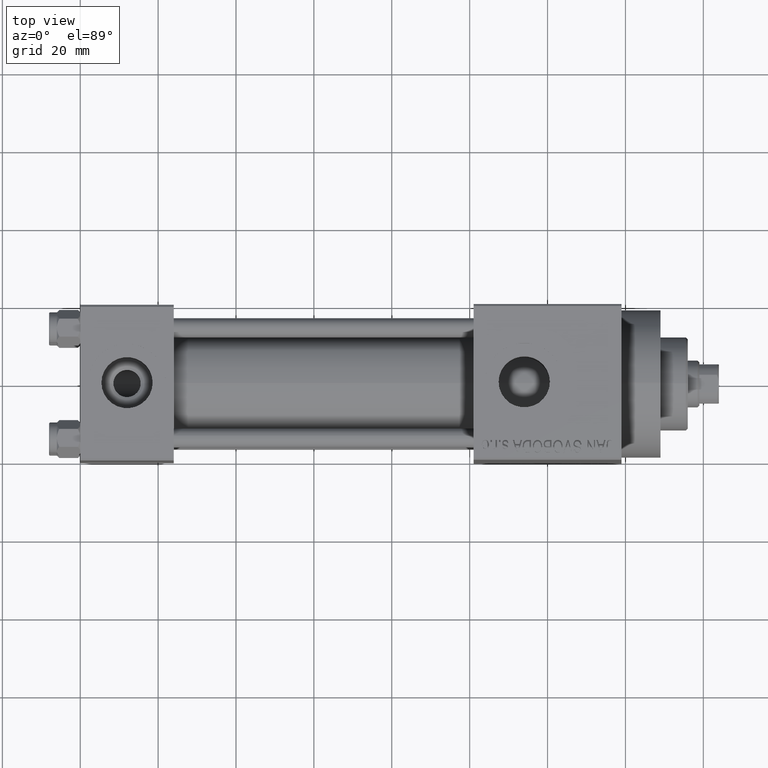
[diagram: clean part render]
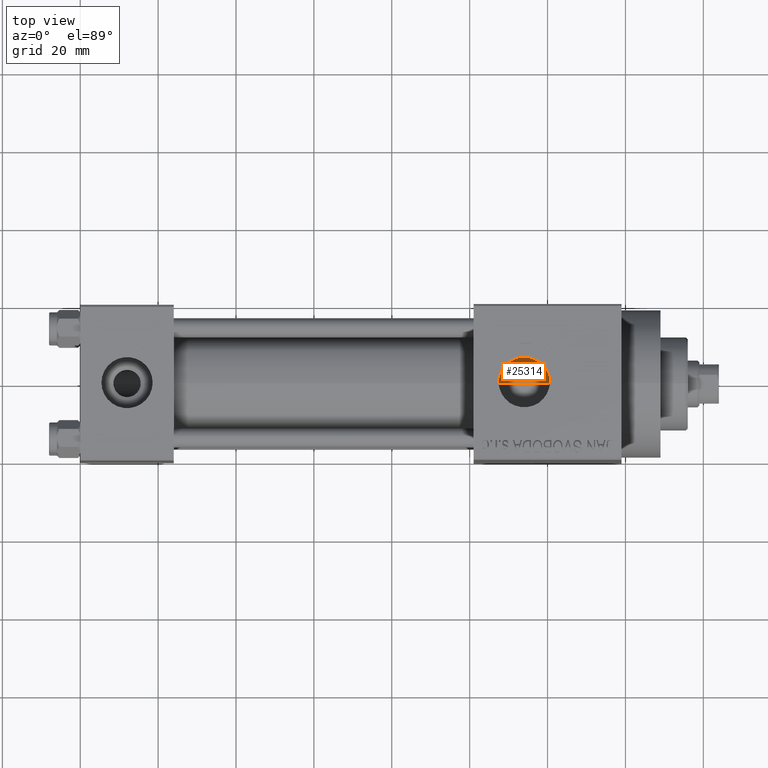
[diagram: same view with one face highlighted and labeled with its STEP entity id]
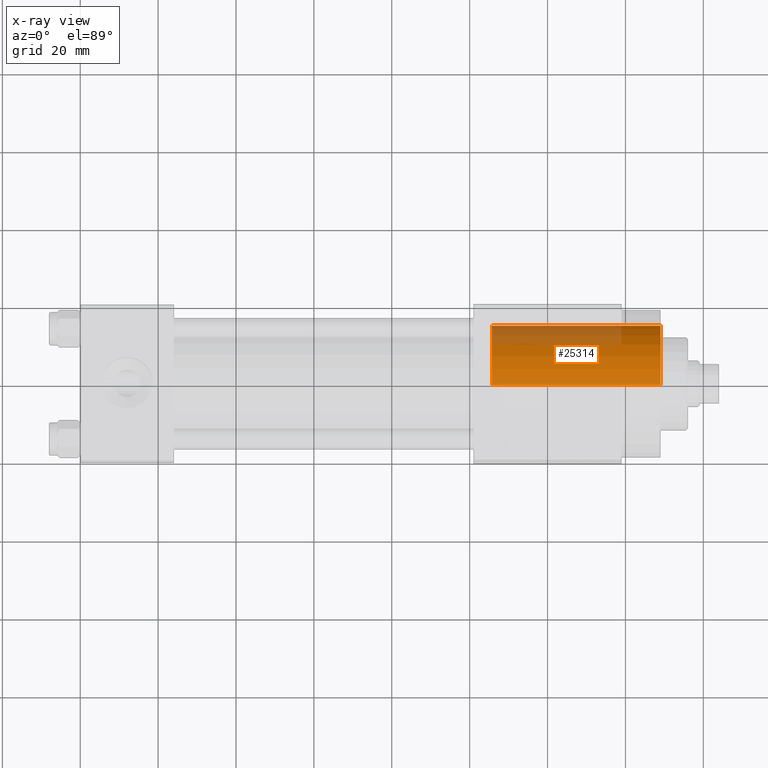
[diagram: x-ray of the same camera — body ghosted, the highlighted face saturated]
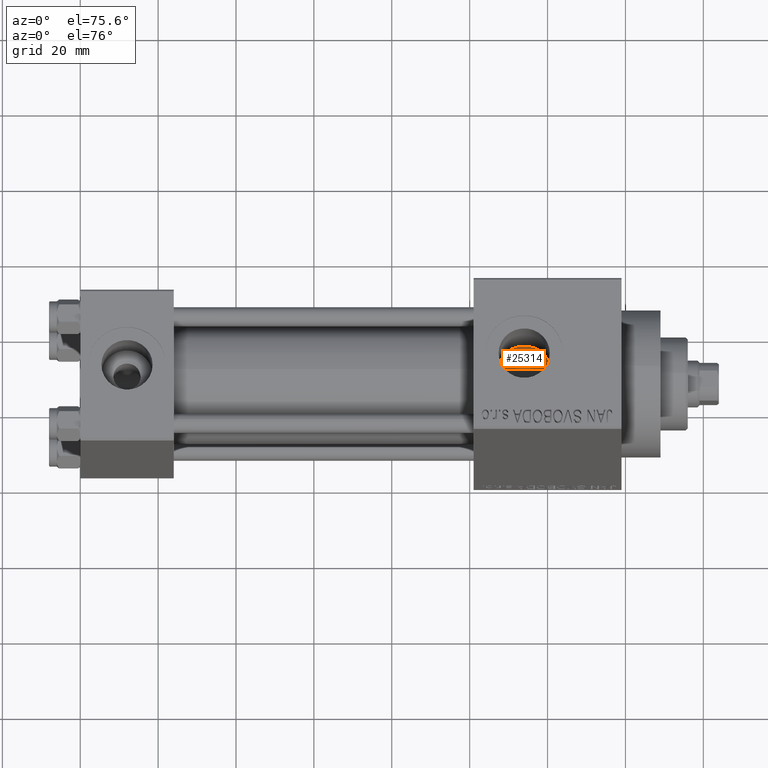
[diagram: same view with one face highlighted and labeled with its STEP entity id]
A machine part, top view. The second image highlights one B-rep face of the part: STEP entity #25314.
The next image is the same camera in x-ray: the body ghosted, the highlighted face saturated — about 28% of this face is hidden behind the body in this view.
A second angle (auxiliary view) of the same face is appended — the face is thin or edge-on in the first view.
In plain terms, the highlighted cylindrical surface (partial cylindrical patch) has radius 15 mm, axis along (-1, 0, 0).
Its self-contained STEP definition (entity closure, byte-faithful):
#131 = DIRECTION ( 'NONE',  ( 0.000000000000000000, 0.000000000000000000, 1.000000000000000000 ) ) ;
#655 = CARTESIAN_POINT ( 'NONE',  ( 15.00000000000000000, 1.836970198721029589E-15, 43.25999999999999801 ) ) ;
#1717 = CIRCLE ( 'NONE', #17650, 15.00000000000000000 ) ;
#3476 = DIRECTION ( 'NONE',  ( 1.000000000000000000, 0.000000000000000000, 0.000000000000000000 ) ) ;
#3797 = CYLINDRICAL_SURFACE ( 'NONE', #41050, 15.00000000000000000 ) ;
#4247 = LINE ( 'NONE', #655, #17190 ) ;
#7319 = CARTESIAN_POINT ( 'NONE',  ( -15.00000000000000000, 0.000000000000000000, 43.25999999999999801 ) ) ;
#10095 = VECTOR ( 'NONE', #29927, 1000.000000000000000 ) ;
#11177 = DIRECTION ( 'NONE',  ( -1.000000000000000000, 0.000000000000000000, 0.000000000000000000 ) ) ;
#11834 = CARTESIAN_POINT ( 'NONE',  ( 15.00000000000000000, 1.836970198721029589E-15, 43.25999999999999801 ) ) ;
#11972 = EDGE_CURVE ( 'NONE', #30467, #35916, #4247, .T. ) ;
#12588 = DIRECTION ( 'NONE',  ( 0.000000000000000000, 0.000000000000000000, 1.000000000000000000 ) ) ;
#14754 = DIRECTION ( 'NONE',  ( -0.000000000000000000, -0.000000000000000000, -1.000000000000000000 ) ) ;
#17190 = VECTOR ( 'NONE', #29956, 1000.000000000000000 ) ;
#17650 = AXIS2_PLACEMENT_3D ( 'NONE', #21579, #131, #3476 ) ;
#19030 = DIRECTION ( 'NONE',  ( 1.000000000000000000, 0.000000000000000000, 0.000000000000000000 ) ) ;
#19508 = VERTEX_POINT ( 'NONE', #35267 ) ;
#20219 = ORIENTED_EDGE ( 'NONE', *, *, #30753, .F. ) ;
#21579 = CARTESIAN_POINT ( 'NONE',  ( 0.000000000000000000, 0.000000000000000000, 43.25999999999999801 ) ) ;
#22786 = LINE ( 'NONE', #7319, #10095 ) ;
#23354 = ORIENTED_EDGE ( 'NONE', *, *, #42257, .T. ) ;
#25314 = ADVANCED_FACE ( 'NONE', ( #36422 ), #3797, .T. ) ;
#29769 = EDGE_LOOP ( 'NONE', ( #40999, #20219, #45941, #23354 ) ) ;
#29927 = DIRECTION ( 'NONE',  ( -0.000000000000000000, -0.000000000000000000, -1.000000000000000000 ) ) ;
#29956 = DIRECTION ( 'NONE',  ( -0.000000000000000000, -0.000000000000000000, -1.000000000000000000 ) ) ;
#30467 = VERTEX_POINT ( 'NONE', #11834 ) ;
#30753 = EDGE_CURVE ( 'NONE', #19508, #30467, #1717, .T. ) ;
#32847 = CARTESIAN_POINT ( 'NONE',  ( 0.000000000000000000, 0.000000000000000000, 43.25999999999999801 ) ) ;
#35267 = CARTESIAN_POINT ( 'NONE',  ( -15.00000000000000000, 0.000000000000000000, 43.25999999999999801 ) ) ;
#35916 = VERTEX_POINT ( 'NONE', #41629 ) ;
#36422 = FACE_OUTER_BOUND ( 'NONE', #29769, .T. ) ;
#37038 = EDGE_CURVE ( 'NONE', #19508, #37795, #22786, .T. ) ;
#37795 = VERTEX_POINT ( 'NONE', #38359 ) ;
#38359 = CARTESIAN_POINT ( 'NONE',  ( -15.00000000000000000, 0.000000000000000000, 0.000000000000000000 ) ) ;
#38415 = AXIS2_PLACEMENT_3D ( 'NONE', #40948, #12588, #19030 ) ;
#40948 = CARTESIAN_POINT ( 'NONE',  ( 0.000000000000000000, 0.000000000000000000, 0.000000000000000000 ) ) ;
#40999 = ORIENTED_EDGE ( 'NONE', *, *, #11972, .F. ) ;
#41050 = AXIS2_PLACEMENT_3D ( 'NONE', #32847, #14754, #11177 ) ;
#41629 = CARTESIAN_POINT ( 'NONE',  ( 15.00000000000000000, 1.836970198721029589E-15, 0.000000000000000000 ) ) ;
#42236 = CIRCLE ( 'NONE', #38415, 15.00000000000000000 ) ;
#42257 = EDGE_CURVE ( 'NONE', #37795, #35916, #42236, .T. ) ;
#45941 = ORIENTED_EDGE ( 'NONE', *, *, #37038, .T. ) ;